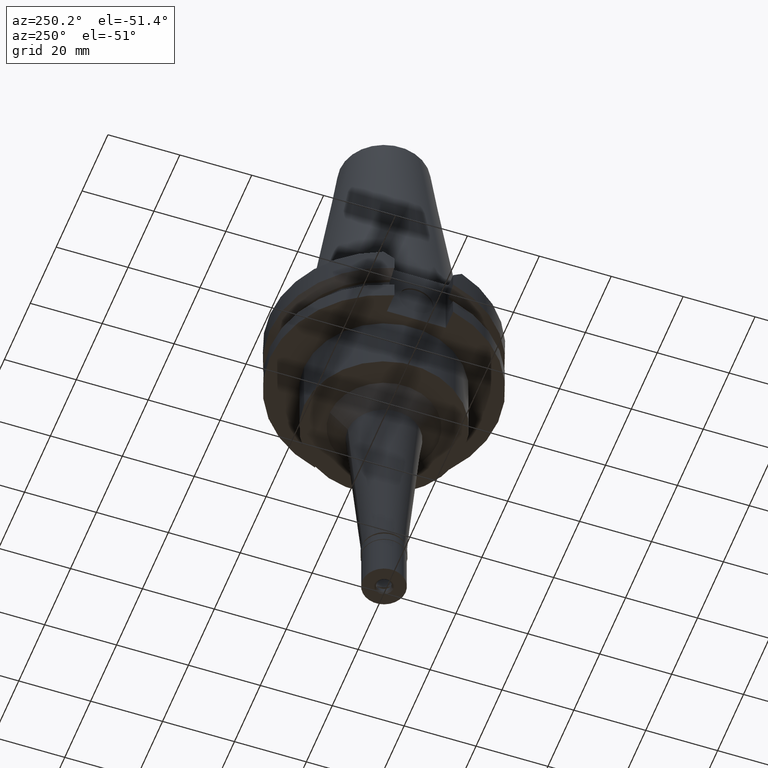
[diagram: clean part render]
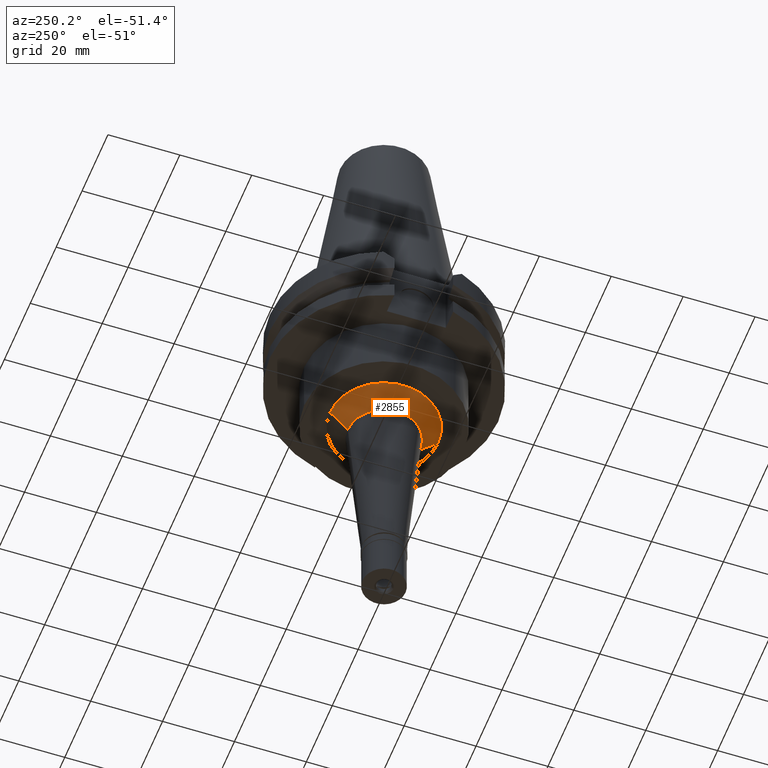
[diagram: same view with one face highlighted and labeled with its STEP entity id]
A machine part, auxiliary view. The second image highlights one B-rep face of the part: STEP entity #2855.
In plain terms, the highlighted conical surface has half-angle 45 deg.
Its self-contained STEP definition (entity closure, byte-faithful):
#7 = ORIENTED_EDGE ( 'NONE', *, *, #617, .F. ) ;
#135 = VERTEX_POINT ( 'NONE', #1304 ) ;
#290 = VERTEX_POINT ( 'NONE', #2267 ) ;
#298 = ORIENTED_EDGE ( 'NONE', *, *, #2981, .T. ) ;
#359 = LINE ( 'NONE', #1781, #1788 ) ;
#463 = ORIENTED_EDGE ( 'NONE', *, *, #1396, .T. ) ;
#493 = CIRCLE ( 'NONE', #3106, 15.05947398760000056 ) ;
#617 = EDGE_CURVE ( 'NONE', #1813, #290, #2625, .T. ) ;
#656 = VECTOR ( 'NONE', #2107, 1000.000000000000000 ) ;
#802 = AXIS2_PLACEMENT_3D ( 'NONE', #1726, #1233, #1196 ) ;
#964 = DIRECTION ( 'NONE',  ( 0.0000000000000000000, 0.0000000000000000000, 1.000000000000000000 ) ) ;
#980 = FACE_OUTER_BOUND ( 'NONE', #2500, .T. ) ;
#1039 = CARTESIAN_POINT ( 'NONE',  ( 0.0000000000000000000, 10.05947398760000056, -40.00000000000000000 ) ) ;
#1104 = VERTEX_POINT ( 'NONE', #1039 ) ;
#1196 = DIRECTION ( 'NONE',  ( 0.0000000000000000000, -1.000000000000000000, 0.0000000000000000000 ) ) ;
#1233 = DIRECTION ( 'NONE',  ( 0.0000000000000000000, 0.0000000000000000000, -1.000000000000000000 ) ) ;
#1304 = CARTESIAN_POINT ( 'NONE',  ( 0.0000000000000000000, 15.05947398760000056, -35.00000000000000000 ) ) ;
#1396 = EDGE_CURVE ( 'NONE', #1813, #135, #493, .T. ) ;
#1533 = CONICAL_SURFACE ( 'NONE', #2195, 12.55947398760000056, 0.7853981633972997312 ) ;
#1592 = DIRECTION ( 'NONE',  ( 0.0000000000000000000, -1.000000000000000000, 0.0000000000000000000 ) ) ;
#1593 = DIRECTION ( 'NONE',  ( 0.0000000000000000000, -0.7071067811864980568, -0.7071067811865969777 ) ) ;
#1726 = CARTESIAN_POINT ( 'NONE',  ( 0.0000000000000000000, 0.0000000000000000000, -40.00000000000000000 ) ) ;
#1781 = CARTESIAN_POINT ( 'NONE',  ( 0.0000000000000000000, 15.05947398760000056, -35.00000000000000000 ) ) ;
#1788 = VECTOR ( 'NONE', #1593, 1000.000000000000000 ) ;
#1813 = VERTEX_POINT ( 'NONE', #2431 ) ;
#1975 = ORIENTED_EDGE ( 'NONE', *, *, #2322, .F. ) ;
#2046 = DIRECTION ( 'NONE',  ( 0.0000000000000000000, 0.0000000000000000000, -1.000000000000000000 ) ) ;
#2107 = DIRECTION ( 'NONE',  ( 0.0000000000000000000, 0.7071067811864980568, -0.7071067811865969777 ) ) ;
#2154 = CARTESIAN_POINT ( 'NONE',  ( 0.0000000000000000000, -15.05947398760000056, -35.00000000000000000 ) ) ;
#2195 = AXIS2_PLACEMENT_3D ( 'NONE', #2230, #964, #2200 ) ;
#2200 = DIRECTION ( 'NONE',  ( 0.0000000000000000000, 1.000000000000000000, 0.0000000000000000000 ) ) ;
#2230 = CARTESIAN_POINT ( 'NONE',  ( 0.0000000000000000000, 0.0000000000000000000, -37.50000000000000000 ) ) ;
#2267 = CARTESIAN_POINT ( 'NONE',  ( 0.0000000000000000000, -10.05947398760000056, -40.00000000000000000 ) ) ;
#2312 = CARTESIAN_POINT ( 'NONE',  ( 0.0000000000000000000, 0.0000000000000000000, -35.00000000000000000 ) ) ;
#2322 = EDGE_CURVE ( 'NONE', #290, #1104, #3112, .T. ) ;
#2431 = CARTESIAN_POINT ( 'NONE',  ( 0.0000000000000000000, -15.05947398760000056, -35.00000000000000000 ) ) ;
#2500 = EDGE_LOOP ( 'NONE', ( #1975, #7, #463, #298 ) ) ;
#2625 = LINE ( 'NONE', #2154, #656 ) ;
#2855 = ADVANCED_FACE ( 'NONE', ( #980 ), #1533, .T. ) ;
#2981 = EDGE_CURVE ( 'NONE', #135, #1104, #359, .T. ) ;
#3106 = AXIS2_PLACEMENT_3D ( 'NONE', #2312, #2046, #1592 ) ;
#3112 = CIRCLE ( 'NONE', #802, 10.05947398760000056 ) ;